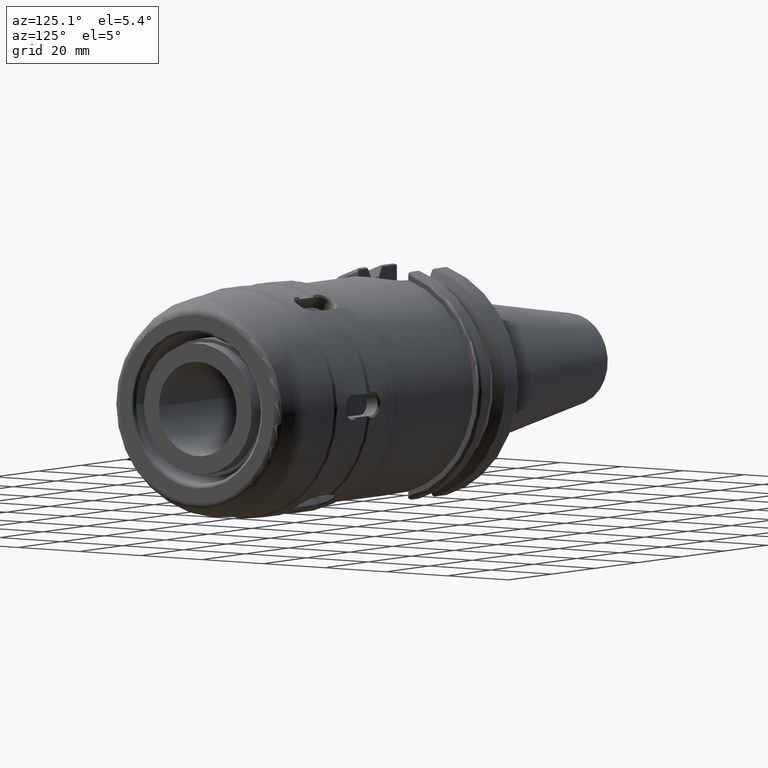
[diagram: clean part render]
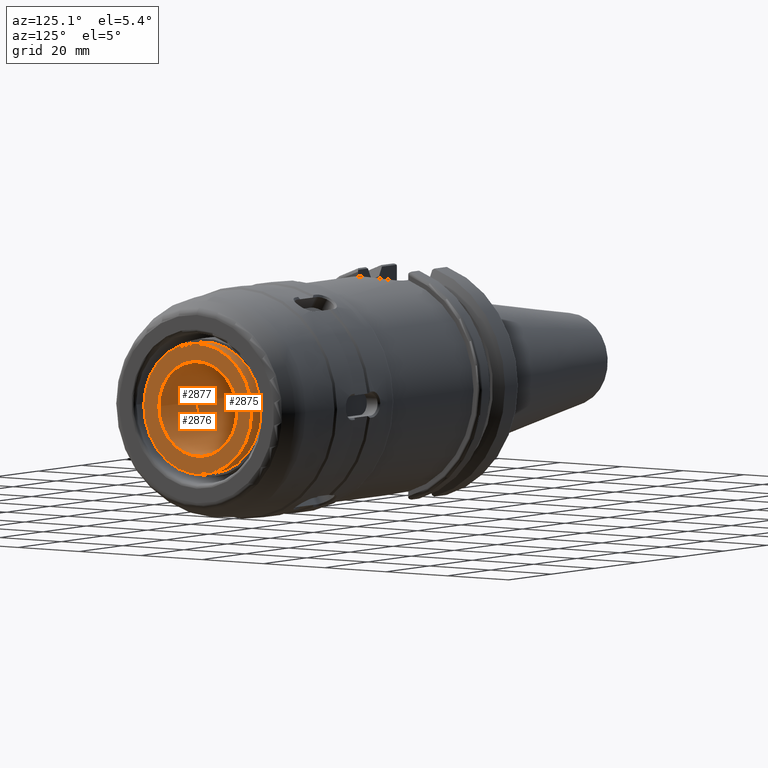
[diagram: same view with one multi-face feature highlighted, each face labeled with its STEP entity id]
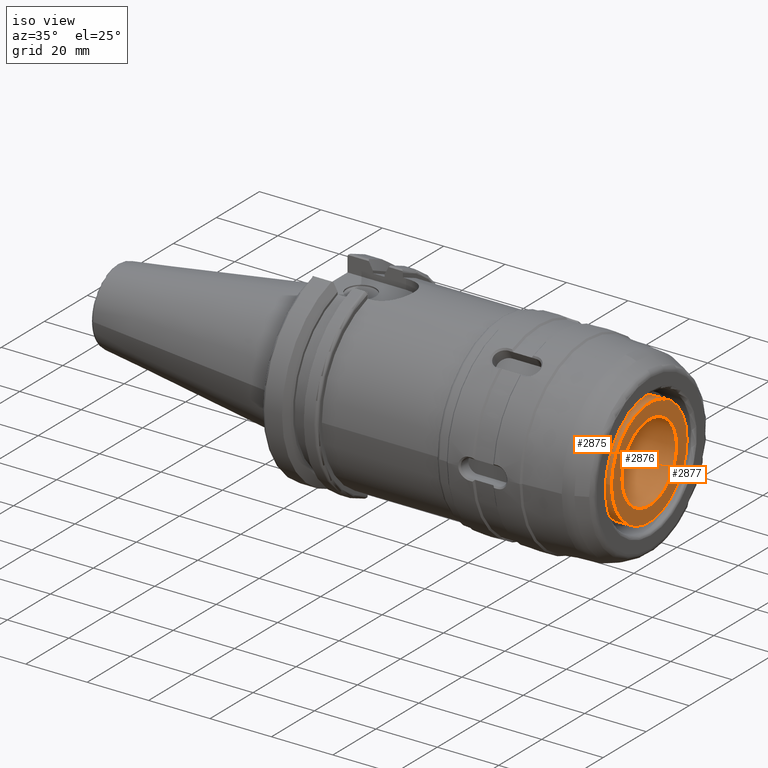
[diagram: same view with one multi-face feature highlighted, each face labeled with its STEP entity id]
A machine part, auxiliary view. The highlighted faces form ONE feature: a stepped (counterbored) hole: 2 coaxial cylindrical walls of radii 12.7 -> 17.6 mm joined by 1 annular planar shoulder face(s). The faces share edges in the B-rep.
A second angle (iso view) of the same feature is appended — it is thin or edge-on in the first view.
Their STEP definitions:
[1] entity #2875 (Cylinder):
#254=FACE_OUTER_BOUND('',#434,.T.);
#434=EDGE_LOOP('',(#1970,#1971,#1972,#1973));
#627=CIRCLE('',#3140,17.6);
#628=CIRCLE('',#3142,17.6);
#758=LINE('',#4324,#961);
#961=VECTOR('',#3486,17.6);
#1218=VERTEX_POINT('',#4319);
#1219=VERTEX_POINT('',#4322);
#1511=EDGE_CURVE('',#1218,#1218,#627,.T.);
#1512=EDGE_CURVE('',#1219,#1219,#628,.T.);
#1513=EDGE_CURVE('',#1219,#1218,#758,.T.);
#1970=ORIENTED_EDGE('',*,*,#1512,.F.);
#1971=ORIENTED_EDGE('',*,*,#1513,.T.);
#1972=ORIENTED_EDGE('',*,*,#1511,.T.);
#1973=ORIENTED_EDGE('',*,*,#1513,.F.);
#2826=CYLINDRICAL_SURFACE('',#3141,17.6);
#2875=ADVANCED_FACE('',(#254),#2826,.T.);
#3140=AXIS2_PLACEMENT_3D('',#4320,#3480,#3481);
#3141=AXIS2_PLACEMENT_3D('',#4321,#3482,#3483);
#3142=AXIS2_PLACEMENT_3D('',#4323,#3484,#3485);
#3480=DIRECTION('center_axis',(1.,0.,0.));
#3481=DIRECTION('ref_axis',(0.,0.,-1.));
#3482=DIRECTION('center_axis',(1.,0.,0.));
#3483=DIRECTION('ref_axis',(0.,1.,0.));
#3484=DIRECTION('center_axis',(1.,0.,0.));
#3485=DIRECTION('ref_axis',(0.,0.,-1.));
#3486=DIRECTION('',(-1.,0.,0.));
#4319=CARTESIAN_POINT('',(100.7,-17.6,-2.15537836649934E-15));
#4320=CARTESIAN_POINT('Origin',(100.7,0.,0.));
#4321=CARTESIAN_POINT('Origin',(102.85,0.,0.));
#4322=CARTESIAN_POINT('',(105.,-17.6,-2.15537836649934E-15));
#4323=CARTESIAN_POINT('Origin',(105.,0.,0.));
#4324=CARTESIAN_POINT('',(102.85,-17.6,-2.15537836649934E-15));
[2] entity #2877 (Cylinder):
#256=FACE_OUTER_BOUND('',#437,.T.);
#437=EDGE_LOOP('',(#1976,#1977,#1978,#1979));
#629=CIRCLE('',#3144,12.7);
#630=CIRCLE('',#3146,12.7);
#759=LINE('',#4330,#962);
#962=VECTOR('',#3493,12.7);
#1220=VERTEX_POINT('',#4326);
#1221=VERTEX_POINT('',#4329);
#1514=EDGE_CURVE('',#1220,#1220,#629,.T.);
#1515=EDGE_CURVE('',#1220,#1221,#759,.T.);
#1516=EDGE_CURVE('',#1221,#1221,#630,.T.);
#1976=ORIENTED_EDGE('',*,*,#1514,.T.);
#1977=ORIENTED_EDGE('',*,*,#1515,.T.);
#1978=ORIENTED_EDGE('',*,*,#1516,.F.);
#1979=ORIENTED_EDGE('',*,*,#1515,.F.);
#2827=CYLINDRICAL_SURFACE('',#3145,12.7);
#2877=ADVANCED_FACE('',(#256),#2827,.F.);
#3144=AXIS2_PLACEMENT_3D('',#4327,#3489,#3490);
#3145=AXIS2_PLACEMENT_3D('',#4328,#3491,#3492);
#3146=AXIS2_PLACEMENT_3D('',#4331,#3494,#3495);
#3489=DIRECTION('center_axis',(1.,0.,0.));
#3490=DIRECTION('ref_axis',(0.,0.,-1.));
#3491=DIRECTION('center_axis',(1.,0.,0.));
#3492=DIRECTION('ref_axis',(0.,1.,0.));
#3493=DIRECTION('',(-1.,0.,0.));
#3494=DIRECTION('center_axis',(1.,0.,0.));
#3495=DIRECTION('ref_axis',(0.,0.,-1.));
#4326=CARTESIAN_POINT('',(105.,-12.7,-1.55530143491714E-15));
#4327=CARTESIAN_POINT('Origin',(105.,0.,0.));
#4328=CARTESIAN_POINT('Origin',(76.,0.,0.));
#4329=CARTESIAN_POINT('',(47.,-12.7,-1.55530143491714E-15));
#4330=CARTESIAN_POINT('',(76.,-12.7,-1.55530143491714E-15));
#4331=CARTESIAN_POINT('Origin',(47.,0.,0.));
[3] entity #2876 (Plane):
#152=FACE_BOUND('',#436,.T.);
#169=PLANE('',#3143);
#255=FACE_OUTER_BOUND('',#435,.T.);
#435=EDGE_LOOP('',(#1974));
#436=EDGE_LOOP('',(#1975));
#628=CIRCLE('',#3142,17.6);
#629=CIRCLE('',#3144,12.7);
#1219=VERTEX_POINT('',#4322);
#1220=VERTEX_POINT('',#4326);
#1512=EDGE_CURVE('',#1219,#1219,#628,.T.);
#1514=EDGE_CURVE('',#1220,#1220,#629,.T.);
#1974=ORIENTED_EDGE('',*,*,#1512,.T.);
#1975=ORIENTED_EDGE('',*,*,#1514,.F.);
#2876=ADVANCED_FACE('',(#255,#152),#169,.T.);
#3142=AXIS2_PLACEMENT_3D('',#4323,#3484,#3485);
#3143=AXIS2_PLACEMENT_3D('',#4325,#3487,#3488);
#3144=AXIS2_PLACEMENT_3D('',#4327,#3489,#3490);
#3484=DIRECTION('center_axis',(1.,0.,0.));
#3485=DIRECTION('ref_axis',(0.,0.,-1.));
#3487=DIRECTION('center_axis',(1.,0.,0.));
#3488=DIRECTION('ref_axis',(0.,0.,-1.));
#3489=DIRECTION('center_axis',(1.,0.,0.));
#3490=DIRECTION('ref_axis',(0.,0.,-1.));
#4322=CARTESIAN_POINT('',(105.,-17.6,-2.15537836649934E-15));
#4323=CARTESIAN_POINT('Origin',(105.,0.,0.));
#4325=CARTESIAN_POINT('Origin',(105.,12.7,0.));
#4326=CARTESIAN_POINT('',(105.,-12.7,-1.55530143491714E-15));
#4327=CARTESIAN_POINT('Origin',(105.,0.,0.));